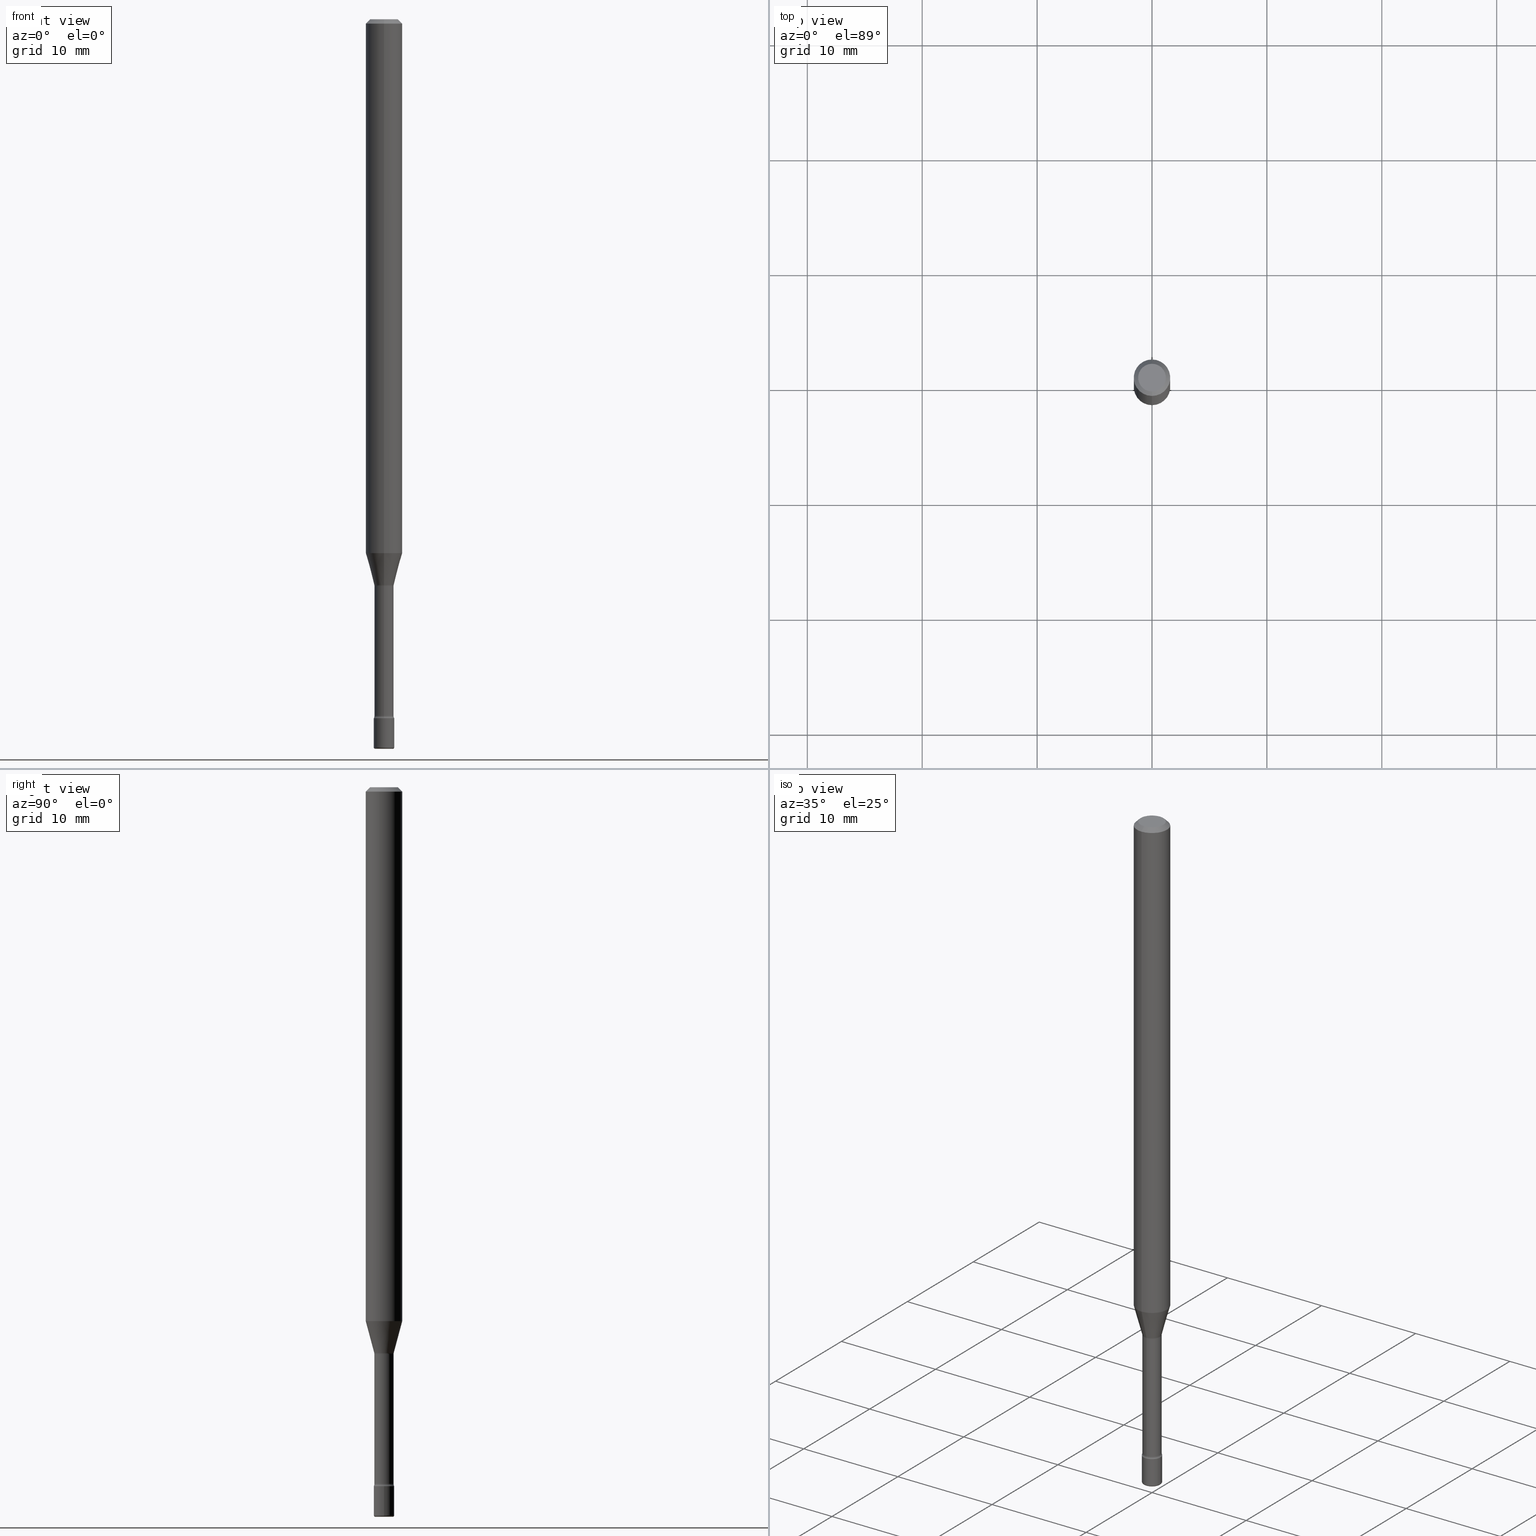
[diagram: canonical four-view strip — front | top / right | iso, engineering-drawing reading convention]
A machine part, canonical four-view strip (front | top / right | iso — engineering-drawing reading convention). The complete STEP part file that produces these views, byte-faithful:
ISO-10303-21;
HEADER;
FILE_DESCRIPTION (( 'STEP AP203' ),
    '1' );
FILE_NAME ('08933.STEP',
    '2024-03-06T20:11:26',
    ( '' ),
    ( '' ),
    'SwSTEP 2.0',
    'SolidWorks 2023',
    '' );
FILE_SCHEMA (( 'CONFIG_CONTROL_DESIGN' ));
ENDSEC;

DATA;
#1 = CARTESIAN_POINT ( 'NONE',  ( -1.169113584055446105E-44, 1.669184350826100908E-30, 4.780733988912460139E-16 ) ) ;
#2 = APPROVAL_STATUS ( 'not_yet_approved' ) ;
#3 = ORIENTED_EDGE ( 'NONE', *, *, #50, .T. ) ;
#4 = CYLINDRICAL_SURFACE ( 'NONE', #437, 0.06250000000000000000 ) ;
#5 = AXIS2_PLACEMENT_3D ( 'NONE', #490, #356, #539 ) ;
#6 = CC_DESIGN_APPROVAL ( #232, ( #136 ) ) ;
#7 = CARTESIAN_POINT ( 'NONE',  ( 6.101444671431915719E-29, -8.711245940413648329E-15, -2.495000000000000107 ) ) ;
#8 = DESIGN_CONTEXT ( 'detailed design', #400, 'design' ) ;
#9 = DIRECTION ( 'NONE',  ( -6.982962677686265922E-15, -1.000000000000000000, 0.000000000000000000 ) ) ;
#10 = DIRECTION ( 'NONE',  ( -2.445361929537154917E-29, 3.491634392286096321E-15, 1.000000000000000000 ) ) ;
#11 = VECTOR ( 'NONE', #10, 39.37007874015748143 ) ;
#12 = EDGE_CURVE ( 'NONE', #503, #272, #79, .T. ) ;
#13 = VERTEX_POINT ( 'NONE', #20 ) ;
#14 = LINE ( 'NONE', #146, #273 ) ;
#15 = APPROVAL ( #540, 'UNSPECIFIED' ) ;
#16 = VERTEX_POINT ( 'NONE', #233 ) ;
#17 = DIRECTION ( 'NONE',  ( 7.105427357600997914E-15, 1.000000000000000000, 0.000000000000000000 ) ) ;
#18 = VERTEX_POINT ( 'NONE', #407 ) ;
#19 = DIRECTION ( 'NONE',  ( -2.445361929537154917E-29, 3.491634392286096321E-15, 1.000000000000000000 ) ) ;
#20 = CARTESIAN_POINT ( 'NONE',  ( -3.773273898774339776E-16, -0.04749999999999998668, 1.387707164749902092E-16 ) ) ;
#21 = CIRCLE ( 'NONE', #556, 0.01500000000000002720 ) ;
#22 = DIRECTION ( 'NONE',  ( -6.982962677686265922E-15, -1.000000000000000000, 0.000000000000000000 ) ) ;
#23 = ORIENTED_EDGE ( 'NONE', *, *, #413, .T. ) ;
#24 = DIRECTION ( 'NONE',  ( -2.445361929537154917E-29, 3.491634392286096321E-15, 1.000000000000000000 ) ) ;
#25 = ORIENTED_EDGE ( 'NONE', *, *, #354, .F. ) ;
#26 = DIRECTION ( 'NONE',  ( -6.982962677686265922E-15, -1.000000000000000000, 4.370956789862821150E-15 ) ) ;
#27 = ADVANCED_FACE ( 'NONE', ( #551 ), #517, .F. ) ;
#28 = CIRCLE ( 'NONE', #446, 0.03341111260566397012 ) ;
#29 = VECTOR ( 'NONE', #284, 39.37007874015748143 ) ;
#30 = CARTESIAN_POINT ( 'NONE',  ( 0.03000000000000000583, -8.938192227438451682E-15, -2.499999999999999556 ) ) ;
#31 = CC_DESIGN_PERSON_AND_ORGANIZATION_ASSIGNMENT ( #128, #344, ( #136 ) ) ;
#32 = APPROVAL_ROLE ( '' ) ;
#33 = EDGE_CURVE ( 'NONE', #239, #235, #397, .T. ) ;
#34 = CALENDAR_DATE ( 2024, 6, 3 ) ;
#35 = CARTESIAN_POINT ( 'NONE',  ( 4.739337619792018117E-29, -6.767110434672245992E-15, -1.938092501787273214 ) ) ;
#36 = AXIS2_PLACEMENT_3D ( 'NONE', #459, #327, #68 ) ;
#37 = CYLINDRICAL_SURFACE ( 'NONE', #392, 0.03290000000000004726 ) ;
#38 = CIRCLE ( 'NONE', #116, 0.03500000000000000333 ) ;
#39 = ORIENTED_EDGE ( 'NONE', *, *, #33, .T. ) ;
#40 = DIRECTION ( 'NONE',  ( 2.445361929537154917E-29, -3.491634392286096321E-15, -1.000000000000000000 ) ) ;
#41 =( NAMED_UNIT ( * ) PLANE_ANGLE_UNIT ( ) SI_UNIT ( $, .RADIAN. ) );
#42 = EDGE_CURVE ( 'NONE', #542, #368, #374, .T. ) ;
#43 = DIRECTION ( 'NONE',  ( -6.982962677686265133E-15, -1.000000000000000000, 3.491634392286094348E-15 ) ) ;
#44 = LINE ( 'NONE', #432, #81 ) ;
#45 = CIRCLE ( 'NONE', #445, 0.03289999999999999869 ) ;
#46 = DATE_AND_TIME ( #266, #151 ) ;
#47 = DIRECTION ( 'NONE',  ( -1.000000000000000000, 6.982962677686265922E-15, -4.883557194083112340E-29 ) ) ;
#48 = DIRECTION ( 'NONE',  ( -6.982962677686265133E-15, -1.000000000000000000, 3.491634392286096715E-15 ) ) ;
#49 = EDGE_CURVE ( 'NONE', #322, #337, #436, .T. ) ;
#50 = EDGE_CURVE ( 'NONE', #568, #456, #264, .T. ) ;
#51 = DATE_AND_TIME ( #433, #72 ) ;
#52 = CARTESIAN_POINT ( 'NONE',  ( -0.03000000000000000583, -8.489048254638724265E-15, -2.499999999999999556 ) ) ;
#53 = CIRCLE ( 'NONE', #150, 0.04749999999999998668 ) ;
#54 = ORIENTED_EDGE ( 'NONE', *, *, #505, .T. ) ;
#55 = LOCAL_TIME ( 15, 11, 26.00000000000000000, #214 ) ;
#56 = DIRECTION ( 'NONE',  ( 1.000000000000000000, -7.105427357601001070E-15, 4.926317382906172649E-29 ) ) ;
#57 = ORIENTED_EDGE ( 'NONE', *, *, #377, .F. ) ;
#58 = CARTESIAN_POINT ( 'NONE',  ( 4.748831213385011578E-29, -6.780665956861124561E-15, -1.941974787463811136 ) ) ;
#59 = DIRECTION ( 'NONE',  ( -2.445468806185136597E-29, 3.491481338843145583E-15, 1.000000000000000000 ) ) ;
#60 = EDGE_CURVE ( 'NONE', #368, #568, #71, .T. ) ;
#61 = CARTESIAN_POINT ( 'NONE',  ( 3.407447217031635915E-16, 0.03341111260565720470, -1.938092501787273214 ) ) ;
#62 = ORIENTED_EDGE ( 'NONE', *, *, #352, .T. ) ;
#63 = ORIENTED_EDGE ( 'NONE', *, *, #197, .F. ) ;
#64 = AXIS2_PLACEMENT_3D ( 'NONE', #391, #220, #219 ) ;
#65 = CONICAL_SURFACE ( 'NONE', #286, 0.06250000000000000000, 0.7853981633974485010 ) ;
#66 = FACE_OUTER_BOUND ( 'NONE', #107, .T. ) ;
#67 = ORIENTED_EDGE ( 'NONE', *, *, #363, .F. ) ;
#68 = DIRECTION ( 'NONE',  ( -6.982962677686265922E-15, -1.000000000000000000, 0.000000000000000000 ) ) ;
#69 = ADVANCED_BREP_SHAPE_REPRESENTATION ( '08933', ( #203, #385, #548 ), #257 ) ;
#70 = DIRECTION ( 'NONE',  ( 2.445361929537154917E-29, -3.491634392286096321E-15, -1.000000000000000000 ) ) ;
#71 = CIRCLE ( 'NONE', #311, 0.004999999999999767651 ) ;
#72 = LOCAL_TIME ( 15, 11, 26.00000000000000000, #493 ) ;
#73 = DIRECTION ( 'NONE',  ( -2.445361929537154917E-29, 3.491634392286096321E-15, 1.000000000000000000 ) ) ;
#74 = EDGE_LOOP ( 'NONE', ( #563, #512, #62, #280 ) ) ;
#75 = DIRECTION ( 'NONE',  ( -6.982962677686265133E-15, -1.000000000000000000, 3.491634392286096321E-15 ) ) ;
#76 = EDGE_LOOP ( 'NONE', ( #279, #543 ) ) ;
#77 = PERSON_AND_ORGANIZATION ( #276, #401 ) ;
#78 = DIRECTION ( 'NONE',  ( -1.000000000000000000, 6.982962677686265922E-15, -4.876176775795935793E-29 ) ) ;
#79 = CIRCLE ( 'NONE', #101, 0.03290000000000008890 ) ;
#80 = DIRECTION ( 'NONE',  ( 1.000000000000000000, 0.000000000000000000, 0.000000000000000000 ) ) ;
#81 = VECTOR ( 'NONE', #350, 39.37007874015748143 ) ;
#82 = DIRECTION ( 'NONE',  ( 4.937700262164548831E-15, 0.7071067811865452413, -0.7071067811865497932 ) ) ;
#83 = AXIS2_PLACEMENT_3D ( 'NONE', #240, #416, #515 ) ;
#84 = APPLICATION_PROTOCOL_DEFINITION ( 'international standard', 'config_control_design', 1994, #474 ) ;
#85 = CARTESIAN_POINT ( 'NONE',  ( 4.440892098500625669E-16, 0.06250000000000000000, 2.598462493733650432E-16 ) ) ;
#86 = DIRECTION ( 'NONE',  ( -2.445361929537154917E-29, 3.491634392286096321E-15, 1.000000000000000000 ) ) ;
#87 = EDGE_CURVE ( 'NONE', #360, #306, #211, .T. ) ;
#88 = SECURITY_CLASSIFICATION_LEVEL ( 'unclassified' ) ;
#89 = CARTESIAN_POINT ( 'NONE',  ( -4.364351673553912750E-16, -0.06250000000000005551, -0.01499999999999981036 ) ) ;
#90 = AXIS2_PLACEMENT_3D ( 'NONE', #359, #278, #96 ) ;
#91 = EDGE_CURVE ( 'NONE', #13, #310, #44, .T. ) ;
#92 = AXIS2_PLACEMENT_3D ( 'NONE', #244, #530, #304 ) ;
#93 = ORIENTED_EDGE ( 'NONE', *, *, #413, .F. ) ;
#94 = APPROVAL_ROLE ( '' ) ;
#95 = ADVANCED_FACE ( 'NONE', ( #339 ), #388, .T. ) ;
#96 = DIRECTION ( 'NONE',  ( 1.000000000000000000, -6.982962677686239889E-15, 4.883557194083103933E-29 ) ) ;
#97 = DIRECTION ( 'NONE',  ( -6.982962677686265133E-15, -1.000000000000000000, 0.000000000000000000 ) ) ;
#98 = ADVANCED_FACE ( 'NONE', ( #523 ), #4, .T. ) ;
#99 = ORIENTED_EDGE ( 'NONE', *, *, #91, .F. ) ;
#100 = DIRECTION ( 'NONE',  ( -6.982962677686265922E-15, -1.000000000000000000, 4.370956789862821150E-15 ) ) ;
#101 = AXIS2_PLACEMENT_3D ( 'NONE', #451, #189, #449 ) ;
#102 = CIRCLE ( 'NONE', #519, 0.04749999999999998668 ) ;
#103 = APPROVAL_PERSON_ORGANIZATION ( #77, #232, #251 ) ;
#104 = EDGE_LOOP ( 'NONE', ( #63, #23, #54, #561 ) ) ;
#105 = EDGE_LOOP ( 'NONE', ( #370, #3, #335, #492 ) ) ;
#106 = CARTESIAN_POINT ( 'NONE',  ( 6.617399431615516844E-46, -9.463332413969183730E-32, -2.708191715859933263E-17 ) ) ;
#107 = EDGE_LOOP ( 'NONE', ( #57, #230, #167, #380 ) ) ;
#108 = ADVANCED_FACE ( 'NONE', ( #172 ), #37, .T. ) ;
#109 = VERTEX_POINT ( 'NONE', #478 ) ;
#110 = DIRECTION ( 'NONE',  ( 1.000000000000000000, -7.105427357601001070E-15, 4.926317382906172649E-29 ) ) ;
#111 = EDGE_LOOP ( 'NONE', ( #198, #522, #427, #293 ) ) ;
#112 = VERTEX_POINT ( 'NONE', #140 ) ;
#113 = FACE_OUTER_BOUND ( 'NONE', #111, .T. ) ;
#114 = ADVANCED_FACE ( 'NONE', ( #347 ), #382, .T. ) ;
#115 = ORIENTED_EDGE ( 'NONE', *, *, #435, .F. ) ;
#116 = AXIS2_PLACEMENT_3D ( 'NONE', #166, #238, #336 ) ;
#117 = CARTESIAN_POINT ( 'NONE',  ( 3.403499704291464501E-16, 0.04789999999999168534, -2.387345589506696619 ) ) ;
#118 = ORIENTED_EDGE ( 'NONE', *, *, #197, .T. ) ;
#119 = CC_DESIGN_DATE_AND_TIME_ASSIGNMENT ( #46, #312, ( #376 ) ) ;
#120 = DIRECTION ( 'NONE',  ( -2.445468806185136597E-29, 3.491481338843145583E-15, 1.000000000000000000 ) ) ;
#121 = VERTEX_POINT ( 'NONE', #168 ) ;
#122 = DIRECTION ( 'NONE',  ( -2.445361929537154917E-29, 3.491634392286096321E-15, 1.000000000000000000 ) ) ;
#123 = VECTOR ( 'NONE', #434, 39.37007874015748143 ) ;
#124 = DIRECTION ( 'NONE',  ( 1.839019923739599921E-15, 0.2588190451025249028, 0.9659258262890670910 ) ) ;
#125 = DATE_TIME_ROLE ( 'creation_date' ) ;
#126 = ORIENTED_EDGE ( 'NONE', *, *, #49, .F. ) ;
#127 = DIRECTION ( 'NONE',  ( -6.982962677686265922E-15, -1.000000000000000000, 3.491634392286095926E-15 ) ) ;
#128 = PERSON_AND_ORGANIZATION ( #276, #401 ) ;
#129 = PLANE ( 'NONE',  #242 ) ;
#130 = EDGE_CURVE ( 'NONE', #18, #121, #566, .T. ) ;
#131 = AXIS2_PLACEMENT_3D ( 'NONE', #500, #59, #194 ) ;
#132 = AXIS2_PLACEMENT_3D ( 'NONE', #35, #145, #9 ) ;
#133 = DIRECTION ( 'NONE',  ( 0.000000000000000000, 0.000000000000000000, 1.000000000000000000 ) ) ;
#134 = AXIS2_PLACEMENT_3D ( 'NONE', #274, #362, #222 ) ;
#135 = DIRECTION ( 'NONE',  ( 6.982962677686265922E-15, 1.000000000000000000, -3.483106191921935554E-15 ) ) ;
#136 = PRODUCT_DEFINITION_FORMATION_WITH_SPECIFIED_SOURCE ( 'ANY', '', #511, .NOT_KNOWN. ) ;
#137 = EDGE_CURVE ( 'NONE', #109, #112, #45, .T. ) ;
#138 = CARTESIAN_POINT ( 'NONE',  ( -0.03499999999999988537, -8.462555982897613832E-15, -2.495000000000000107 ) ) ;
#139 = ORIENTED_EDGE ( 'NONE', *, *, #60, .T. ) ;
#140 = CARTESIAN_POINT ( 'NONE',  ( 2.337685600651315248E-16, 0.03289999999999321245, -1.941974787463811136 ) ) ;
#141 = CARTESIAN_POINT ( 'NONE',  ( 2.486899575160932672E-16, 0.03499999999999160033, -2.395000000000000018 ) ) ;
#142 = PERSON_AND_ORGANIZATION ( #276, #401 ) ;
#143 = DIRECTION ( 'NONE',  ( -1.000000000000000000, 6.982962677686265922E-15, -4.883557194083112340E-29 ) ) ;
#144 = AXIS2_PLACEMENT_3D ( 'NONE', #404, #143, #394 ) ;
#145 = DIRECTION ( 'NONE',  ( -2.445361929537154917E-29, 3.491634392286096321E-15, 1.000000000000000000 ) ) ;
#146 = CARTESIAN_POINT ( 'NONE',  ( 0.03500000000000000333, -2.444036937190193250E-16, 1.706661871528577808E-30 ) ) ;
#147 = ORIENTED_EDGE ( 'NONE', *, *, #570, .T. ) ;
#148 = DIRECTION ( 'NONE',  ( -2.445468806185136597E-29, 3.491481338843145583E-15, 1.000000000000000000 ) ) ;
#149 = CLOSED_SHELL ( 'NONE', ( #439, #210, #114, #157, #250, #342 ) ) ;
#150 = AXIS2_PLACEMENT_3D ( 'NONE', #270, #351, #48 ) ;
#151 = LOCAL_TIME ( 15, 11, 26.00000000000000000, #536 ) ;
#152 = DIRECTION ( 'NONE',  ( -2.445468806185136597E-29, 3.491481338843145583E-15, 1.000000000000000000 ) ) ;
#153 = DIRECTION ( 'NONE',  ( -2.445468806185136597E-29, 3.491481338843145583E-15, 1.000000000000000000 ) ) ;
#154 = CC_DESIGN_PERSON_AND_ORGANIZATION_ASSIGNMENT ( #562, #247, ( #453 ) ) ;
#155 = CARTESIAN_POINT ( 'NONE',  ( 5.856641821241486538E-29, -8.362464369525200210E-15, -2.395000000000000018 ) ) ;
#156 = CARTESIAN_POINT ( 'NONE',  ( 0.000000000000000000, 0.000000000000000000, 0.000000000000000000 ) ) ;
#157 = ADVANCED_FACE ( 'NONE', ( #178 ), #129, .T. ) ;
#158 = CYLINDRICAL_SURFACE ( 'NONE', #256, 0.03500000000000000333 ) ;
#159 = ADVANCED_FACE ( 'NONE', ( #520 ), #375, .T. ) ;
#160 = EDGE_LOOP ( 'NONE', ( #516, #405, #420, #195 ) ) ;
#161 = AXIS2_PLACEMENT_3D ( 'NONE', #191, #152, #326 ) ;
#162 = CIRCLE ( 'NONE', #348, 0.01499999999999992485 ) ;
#163 = AXIS2_PLACEMENT_3D ( 'NONE', #560, #282, #22 ) ;
#164 = CARTESIAN_POINT ( 'NONE',  ( 4.473866180369832235E-29, -6.388054395212417498E-15, -1.829531296095961546 ) ) ;
#165 = ORIENTED_EDGE ( 'NONE', *, *, #414, .T. ) ;
#166 = CARTESIAN_POINT ( 'NONE',  ( 6.101444671431915719E-29, -8.711245940413648329E-15, -2.495000000000000107 ) ) ;
#167 = ORIENTED_EDGE ( 'NONE', *, *, #315, .T. ) ;
#168 = CARTESIAN_POINT ( 'NONE',  ( 4.440892098501075812E-16, 0.06249999999999995143, -0.01500000000000024578 ) ) ;
#169 = DATE_AND_TIME ( #34, #206 ) ;
#170 = DIRECTION ( 'NONE',  ( 7.105427357601001859E-15, 1.000000000000000000, -3.491481338843145583E-15 ) ) ;
#171 = DIRECTION ( 'NONE',  ( -6.982962677686266711E-15, -1.000000000000000000, 3.491481338843145583E-15 ) ) ;
#172 = FACE_OUTER_BOUND ( 'NONE', #411, .T. ) ;
#173 = ADVANCED_FACE ( 'NONE', ( #425 ), #472, .T. ) ;
#174 = DIRECTION ( 'NONE',  ( 1.000000000000000000, -6.982962677686248567E-15, 0.000000000000000000 ) ) ;
#175 = AXIS2_PLACEMENT_3D ( 'NONE', #309, #541, #316 ) ;
#176 = COORDINATED_UNIVERSAL_TIME_OFFSET ( 5, 0, .BEHIND. ) ;
#177 = AXIS2_PLACEMENT_3D ( 'NONE', #288, #19, #553 ) ;
#178 = FACE_OUTER_BOUND ( 'NONE', #76, .T. ) ;
#179 = DIRECTION ( 'NONE',  ( -6.982962677686266711E-15, -1.000000000000000000, 0.000000000000000000 ) ) ;
#180 = ORIENTED_EDGE ( 'NONE', *, *, #414, .F. ) ;
#181 = DIRECTION ( 'NONE',  ( -2.445361929537154636E-29, 3.491634392286096321E-15, 1.000000000000000000 ) ) ;
#182 = PERSON_AND_ORGANIZATION ( #276, #401 ) ;
#183 = CARTESIAN_POINT ( 'NONE',  ( -2.444036937189605549E-16, -0.03500000000000832306, -2.395000000000000018 ) ) ;
#184 = TOROIDAL_SURFACE ( 'NONE', #90, 0.03000000000000000583, 0.004999999999999767651 ) ;
#185 = AXIS2_PLACEMENT_3D ( 'NONE', #557, #171, #338 ) ;
#186 = EDGE_LOOP ( 'NONE', ( #99, #277, #275, #147 ) ) ;
#187 = CARTESIAN_POINT ( 'NONE',  ( -3.344839122611139354E-16, -0.04790000000000835256, -2.387345589506696175 ) ) ;
#188 = EDGE_CURVE ( 'NONE', #547, #16, #305, .T. ) ;
#189 = DIRECTION ( 'NONE',  ( -2.445361929537154917E-29, 3.491634392286096321E-15, 1.000000000000000000 ) ) ;
#190 = CARTESIAN_POINT ( 'NONE',  ( 4.739337619792018117E-29, -6.767110434672245992E-15, -1.938092501787273214 ) ) ;
#191 = CARTESIAN_POINT ( 'NONE',  ( 5.856897790813402508E-29, -8.362097806529333416E-15, -2.395000000000000018 ) ) ;
#192 = FACE_OUTER_BOUND ( 'NONE', #487, .T. ) ;
#193 = CIRCLE ( 'NONE', #175, 0.06250000000000000000 ) ;
#194 = DIRECTION ( 'NONE',  ( 1.000000000000000000, -6.982962677686299054E-15, 0.000000000000000000 ) ) ;
#195 = ORIENTED_EDGE ( 'NONE', *, *, #297, .F. ) ;
#196 = CARTESIAN_POINT ( 'NONE',  ( 4.749038765140760416E-29, -6.780368730933779783E-15, -1.941974787463811136 ) ) ;
#197 = EDGE_CURVE ( 'NONE', #16, #121, #482, .T. ) ;
#198 = ORIENTED_EDGE ( 'NONE', *, *, #484, .F. ) ;
#199 = ORIENTED_EDGE ( 'NONE', *, *, #271, .F. ) ;
#200 = CARTESIAN_POINT ( 'NONE',  ( 2.337685600650732477E-16, 0.03290000000000004726, 3.631986273850333500E-16 ) ) ;
#201 = ORIENTED_EDGE ( 'NONE', *, *, #315, .F. ) ;
#202 = DIRECTION ( 'NONE',  ( 6.982962677686265922E-15, 1.000000000000000000, -3.483106191921935554E-15 ) ) ;
#203 = MANIFOLD_SOLID_BREP ( 'Body-Move/Copy2[1]', #149 ) ;
#204 = ORIENTED_EDGE ( 'NONE', *, *, #50, .F. ) ;
#205 = CC_DESIGN_APPROVAL ( #15, ( #376 ) ) ;
#206 = LOCAL_TIME ( 15, 11, 26.00000000000000000, #422 ) ;
#207 = DIRECTION ( 'NONE',  ( 1.000000000000000000, -6.982962677686276966E-15, 0.000000000000000000 ) ) ;
#208 = ORIENTED_EDGE ( 'NONE', *, *, #377, .T. ) ;
#209 = ORIENTED_EDGE ( 'NONE', *, *, #455, .T. ) ;
#210 = ADVANCED_FACE ( 'NONE', ( #393 ), #184, .T. ) ;
#211 = LINE ( 'NONE', #343, #408 ) ;
#212 = CIRCLE ( 'NONE', #458, 0.03289999999999999869 ) ;
#213 = VECTOR ( 'NONE', #73, 39.37007874015748143 ) ;
#214 = COORDINATED_UNIVERSAL_TIME_OFFSET ( 5, 0, .BEHIND. ) ;
#215 = DIRECTION ( 'NONE',  ( -2.445361929537154917E-29, 3.491634392286096321E-15, 1.000000000000000000 ) ) ;
#216 =( CONVERSION_BASED_UNIT ( 'INCH', #379 ) LENGTH_UNIT ( ) NAMED_UNIT ( #281 ) );
#217 = CC_DESIGN_PERSON_AND_ORGANIZATION_ASSIGNMENT ( #182, #319, ( #376 ) ) ;
#218 = CARTESIAN_POINT ( 'NONE',  ( -1.169113584055446105E-44, 1.669184350826100908E-30, 4.780733988912460139E-16 ) ) ;
#219 = DIRECTION ( 'NONE',  ( 1.000000000000000000, -6.982962677686265922E-15, 4.876176775795935793E-29 ) ) ;
#220 = DIRECTION ( 'NONE',  ( -2.438088387897960049E-29, 3.491481338843145188E-15, 1.000000000000000000 ) ) ;
#221 = UNCERTAINTY_MEASURE_WITH_UNIT (LENGTH_MEASURE( 1.000000000000000082E-05 ), #216, 'distance_accuracy_value', 'NONE');
#222 = DIRECTION ( 'NONE',  ( -6.982962677686266711E-15, -1.000000000000000000, 0.000000000000000000 ) ) ;
#223 = FACE_OUTER_BOUND ( 'NONE', #228, .T. ) ;
#224 = ORIENTED_EDGE ( 'NONE', *, *, #352, .F. ) ;
#225 = CARTESIAN_POINT ( 'NONE',  ( -0.03500000000000000333, -8.287981915955455587E-15, -2.395000000000000018 ) ) ;
#226 = VECTOR ( 'NONE', #124, 39.37007874015748143 ) ;
#227 = LOCAL_TIME ( 15, 11, 26.00000000000000000, #176 ) ;
#228 = EDGE_LOOP ( 'NONE', ( #423, #209, #444, #204 ) ) ;
#229 = EDGE_CURVE ( 'NONE', #360, #547, #302, .T. ) ;
#230 = ORIENTED_EDGE ( 'NONE', *, *, #229, .F. ) ;
#231 = CARTESIAN_POINT ( 'NONE',  ( 0.03500000000000000333, -8.606501500248353382E-15, -2.395000000000000018 ) ) ;
#232 = APPROVAL ( #524, 'UNSPECIFIED' ) ;
#233 = CARTESIAN_POINT ( 'NONE',  ( 4.440892098501069896E-16, 0.06249999999999358152, -1.829531296095961990 ) ) ;
#234 = DIRECTION ( 'NONE',  ( -2.445361929537154917E-29, 3.491634392286096321E-15, 1.000000000000000000 ) ) ;
#235 = VERTEX_POINT ( 'NONE', #231 ) ;
#236 = DIRECTION ( 'NONE',  ( 1.000000000000000000, -6.982962677686265922E-15, 4.876176775795936353E-29 ) ) ;
#237 = ORIENTED_EDGE ( 'NONE', *, *, #297, .T. ) ;
#238 = DIRECTION ( 'NONE',  ( -2.445468806185136597E-29, 3.491481338843145583E-15, 1.000000000000000000 ) ) ;
#239 = VERTEX_POINT ( 'NONE', #225 ) ;
#240 = CARTESIAN_POINT ( 'NONE',  ( 5.856641821241486538E-29, -8.362464369525200210E-15, -2.395000000000000018 ) ) ;
#241 = PRODUCT_DEFINITION_SHAPE ( 'NONE', 'NONE',  #453 ) ;
#242 = AXIS2_PLACEMENT_3D ( 'NONE', #424, #531, #78 ) ;
#243 = ORIENTED_EDGE ( 'NONE', *, *, #505, .F. ) ;
#244 = CARTESIAN_POINT ( 'NONE',  ( 3.668042894305739311E-31, -5.237451588429154292E-17, -0.01500000000000002720 ) ) ;
#245 = ORIENTED_EDGE ( 'NONE', *, *, #396, .T. ) ;
#246 = CC_DESIGN_PERSON_AND_ORGANIZATION_ASSIGNMENT ( #261, #521, ( #511 ) ) ;
#247 = PERSON_AND_ORGANIZATION_ROLE ( 'creator' ) ;
#248 = ORIENTED_EDGE ( 'NONE', *, *, #461, .F. ) ;
#249 = CARTESIAN_POINT ( 'NONE',  ( 6.101444671431915719E-29, -8.711245940413648329E-15, -2.495000000000000107 ) ) ;
#250 = ADVANCED_FACE ( 'NONE', ( #223 ), #419, .T. ) ;
#251 = APPROVAL_ROLE ( '' ) ;
#252 = EDGE_LOOP ( 'NONE', ( #466, #421, #67, #496 ) ) ;
#253 = DIRECTION ( 'NONE',  ( -2.445361929537154917E-29, 3.491634392286096321E-15, 1.000000000000000000 ) ) ;
#254 = ADVANCED_FACE ( 'NONE', ( #324 ), #450, .F. ) ;
#255 = EDGE_CURVE ( 'NONE', #503, #337, #162, .T. ) ;
#256 = AXIS2_PLACEMENT_3D ( 'NONE', #156, #329, #236 ) ;
#257 =( GEOMETRIC_REPRESENTATION_CONTEXT ( 3 ) GLOBAL_UNCERTAINTY_ASSIGNED_CONTEXT ( ( #221 ) ) GLOBAL_UNIT_ASSIGNED_CONTEXT ( ( #216, #41, #564 ) ) REPRESENTATION_CONTEXT ( 'NONE', 'WORKASPACE' ) );
#258 = CALENDAR_DATE ( 2024, 6, 3 ) ;
#259 = CARTESIAN_POINT ( 'NONE',  ( 3.668042894305739311E-31, -5.237451588429154292E-17, -0.01500000000000002720 ) ) ;
#260 = CC_DESIGN_DATE_AND_TIME_ASSIGNMENT ( #169, #125, ( #453 ) ) ;
#261 = PERSON_AND_ORGANIZATION ( #276, #401 ) ;
#262 = DIRECTION ( 'NONE',  ( -1.000000000000000000, 7.105427357601061812E-15, 0.000000000000000000 ) ) ;
#263 = CARTESIAN_POINT ( 'NONE',  ( 2.374002335562198482E-16, 0.03341111260565720470, -1.938092501787273214 ) ) ;
#264 = CIRCLE ( 'NONE', #457, 0.03500000000000000333 ) ;
#265 = CIRCLE ( 'NONE', #398, 0.03500000000000000333 ) ;
#266 = CALENDAR_DATE ( 2024, 6, 3 ) ;
#267 = FACE_OUTER_BOUND ( 'NONE', #105, .T. ) ;
#268 = SHAPE_DEFINITION_REPRESENTATION ( #241, #69 ) ;
#269 = CARTESIAN_POINT ( 'NONE',  ( 2.444036937190778979E-16, 0.03499999999999164196, -2.395000000000000018 ) ) ;
#270 = CARTESIAN_POINT ( 'NONE',  ( 6.617399431615516844E-46, -9.463332413969183730E-32, -2.708191715859933263E-17 ) ) ;
#271 = EDGE_CURVE ( 'NONE', #272, #503, #341, .T. ) ;
#272 = VERTEX_POINT ( 'NONE', #441 ) ;
#273 = VECTOR ( 'NONE', #320, 39.37007874015748143 ) ;
#274 = CARTESIAN_POINT ( 'NONE',  ( 5.837924017228111976E-29, -8.335737966594106856E-15, -2.387345589506696619 ) ) ;
#275 = ORIENTED_EDGE ( 'NONE', *, *, #130, .T. ) ;
#276 = PERSON ( 'UNSPECIFIED', 'UNSPECIFIED', 'UNSPECIFIED', ('UNSPECIFIED'), ('UNSPECIFIED'), ('UNSPECIFIED') ) ;
#277 = ORIENTED_EDGE ( 'NONE', *, *, #289, .F. ) ;
#278 = DIRECTION ( 'NONE',  ( -2.445468806185136597E-29, 3.491481338843145583E-15, 1.000000000000000000 ) ) ;
#279 = ORIENTED_EDGE ( 'NONE', *, *, #42, .F. ) ;
#280 = ORIENTED_EDGE ( 'NONE', *, *, #130, .F. ) ;
#281 = DIMENSIONAL_EXPONENTS ( 1.000000000000000000, 0.000000000000000000, 0.000000000000000000, 0.000000000000000000, 0.000000000000000000, 0.000000000000000000, 0.000000000000000000 ) ;
#282 = DIRECTION ( 'NONE',  ( -2.445361929537154917E-29, 3.491634392286096321E-15, 1.000000000000000000 ) ) ;
#283 = EDGE_LOOP ( 'NONE', ( #361, #118, #224, #243 ) ) ;
#284 = DIRECTION ( 'NONE',  ( -2.445468806185136877E-29, 3.491481338843145188E-15, 1.000000000000000000 ) ) ;
#285 = VECTOR ( 'NONE', #366, 39.37007874015748143 ) ;
#286 = AXIS2_PLACEMENT_3D ( 'NONE', #334, #70, #202 ) ;
#287 = ORIENTED_EDGE ( 'NONE', *, *, #188, .F. ) ;
#288 = CARTESIAN_POINT ( 'NONE',  ( 4.749038765140760416E-29, -6.780368730933779783E-15, -1.941974787463811136 ) ) ;
#289 = EDGE_CURVE ( 'NONE', #18, #13, #53, .T. ) ;
#290 = DIRECTION ( 'NONE',  ( 7.105427357601001859E-15, 1.000000000000000000, 0.000000000000000000 ) ) ;
#291 = LINE ( 'NONE', #418, #213 ) ;
#292 = EDGE_LOOP ( 'NONE', ( #287, #452, #389, #93 ) ) ;
#293 = ORIENTED_EDGE ( 'NONE', *, *, #462, .T. ) ;
#294 = AXIS2_PLACEMENT_3D ( 'NONE', #259, #40, #135 ) ;
#295 = MECHANICAL_CONTEXT ( 'NONE', #474, 'mechanical' ) ;
#296 = CARTESIAN_POINT ( 'NONE',  ( 4.748831213385011578E-29, -6.780665956861124561E-15, -1.941974787463811136 ) ) ;
#297 = EDGE_CURVE ( 'NONE', #503, #109, #535, .T. ) ;
#298 = CARTESIAN_POINT ( 'NONE',  ( 0.000000000000000000, 0.000000000000000000, 0.000000000000000000 ) ) ;
#299 = CARTESIAN_POINT ( 'NONE',  ( -1.169113584055446105E-44, 1.669184350826100908E-30, 4.780733988912460139E-16 ) ) ;
#300 = FACE_OUTER_BOUND ( 'NONE', #463, .T. ) ;
#301 = CARTESIAN_POINT ( 'NONE',  ( -0.03000000000000000583, -8.498083119685618084E-15, -2.495000000000000107 ) ) ;
#302 = CIRCLE ( 'NONE', #132, 0.03341111260566397012 ) ;
#303 = CC_DESIGN_APPROVAL ( #572, ( #453 ) ) ;
#304 = DIRECTION ( 'NONE',  ( -6.982962677686265922E-15, -1.000000000000000000, 3.483106191921935554E-15 ) ) ;
#305 = LINE ( 'NONE', #263, #226 ) ;
#306 = VERTEX_POINT ( 'NONE', #353 ) ;
#307 = CALENDAR_DATE ( 2024, 6, 3 ) ;
#308 = DIRECTION ( 'NONE',  ( -6.982962677686265133E-15, -1.000000000000000000, 0.000000000000000000 ) ) ;
#309 = CARTESIAN_POINT ( 'NONE',  ( 3.668042894305739311E-31, -5.237451588429154292E-17, -0.01500000000000002720 ) ) ;
#310 = VERTEX_POINT ( 'NONE', #89 ) ;
#311 = AXIS2_PLACEMENT_3D ( 'NONE', #301, #170, #262 ) ;
#312 = DATE_TIME_ROLE ( 'classification_date' ) ;
#313 = AXIS2_PLACEMENT_3D ( 'NONE', #331, #153, #513 ) ;
#314 = CYLINDRICAL_SURFACE ( 'NONE', #5, 0.03500000000000000333 ) ;
#315 = EDGE_CURVE ( 'NONE', #360, #109, #426, .T. ) ;
#316 = DIRECTION ( 'NONE',  ( -6.982962677686265922E-15, -1.000000000000000000, 3.483106191921935554E-15 ) ) ;
#317 = ORIENTED_EDGE ( 'NONE', *, *, #461, .T. ) ;
#318 = EDGE_LOOP ( 'NONE', ( #317, #514, #180, #403 ) ) ;
#319 = PERSON_AND_ORGANIZATION_ROLE ( 'classification_officer' ) ;
#320 = DIRECTION ( 'NONE',  ( -2.445468806185136877E-29, 3.491481338843145188E-15, 1.000000000000000000 ) ) ;
#321 = ORIENTED_EDGE ( 'NONE', *, *, #289, .T. ) ;
#322 = VERTEX_POINT ( 'NONE', #141 ) ;
#323 = CIRCLE ( 'NONE', #332, 0.06250000000000000000 ) ;
#324 = FACE_OUTER_BOUND ( 'NONE', #415, .T. ) ;
#325 = TOROIDAL_SURFACE ( 'NONE', #177, 0.04789999999999999813, 0.01500000000000002547 ) ;
#326 = DIRECTION ( 'NONE',  ( 1.000000000000000000, -6.982962677686276966E-15, 0.000000000000000000 ) ) ;
#327 = DIRECTION ( 'NONE',  ( -2.445361929537154917E-29, 3.491634392286096321E-15, 1.000000000000000000 ) ) ;
#328 = DIRECTION ( 'NONE',  ( -2.445361929537154917E-29, 3.491634392286096321E-15, 1.000000000000000000 ) ) ;
#329 = DIRECTION ( 'NONE',  ( -2.445468806185136597E-29, 3.491481338843145583E-15, 1.000000000000000000 ) ) ;
#330 = DIRECTION ( 'NONE',  ( -2.445361929537154917E-29, 3.491634392286096321E-15, 1.000000000000000000 ) ) ;
#331 = CARTESIAN_POINT ( 'NONE',  ( 6.113672015462840371E-29, -8.728703347107863365E-15, -2.499999999999999556 ) ) ;
#332 = AXIS2_PLACEMENT_3D ( 'NONE', #164, #378, #26 ) ;
#333 = APPROVAL_PERSON_ORGANIZATION ( #431, #572, #32 ) ;
#334 = CARTESIAN_POINT ( 'NONE',  ( 3.668042894305739311E-31, -5.237451588429154292E-17, -0.01500000000000002720 ) ) ;
#335 = ORIENTED_EDGE ( 'NONE', *, *, #372, .T. ) ;
#336 = DIRECTION ( 'NONE',  ( 1.000000000000000000, -6.982962677686248567E-15, 0.000000000000000000 ) ) ;
#337 = VERTEX_POINT ( 'NONE', #183 ) ;
#338 = DIRECTION ( 'NONE',  ( 1.000000000000000000, -6.982962677686075017E-15, 0.000000000000000000 ) ) ;
#339 = FACE_OUTER_BOUND ( 'NONE', #104, .T. ) ;
#340 = CLOSED_SHELL ( 'NONE', ( #550, #173, #27, #468, #98, #430, #476, #95, #159, #567, #254, #479, #108, #532 ) ) ;
#341 = CIRCLE ( 'NONE', #134, 0.03290000000000008890 ) ;
#342 = ADVANCED_FACE ( 'NONE', ( #267 ), #314, .T. ) ;
#343 = CARTESIAN_POINT ( 'NONE',  ( -2.333085523452772130E-16, -0.03341111260567073554, -1.938092501787273214 ) ) ;
#344 = PERSON_AND_ORGANIZATION_ROLE ( 'creator' ) ;
#345 = DIRECTION ( 'NONE',  ( -6.982962677686265922E-15, -1.000000000000000000, 3.491634392286095926E-15 ) ) ;
#346 = CARTESIAN_POINT ( 'NONE',  ( 3.316907271900975110E-16, 0.04749999999999998668, 5.964310723273385275E-17 ) ) ;
#347 = FACE_OUTER_BOUND ( 'NONE', #358, .T. ) ;
#348 = AXIS2_PLACEMENT_3D ( 'NONE', #187, #47, #179 ) ;
#349 = DATE_AND_TIME ( #307, #227 ) ;
#350 = DIRECTION ( 'NONE',  ( -4.851104656540965064E-15, -0.7071067811865501263, -0.7071067811865449082 ) ) ;
#351 = DIRECTION ( 'NONE',  ( -2.445361929537154917E-29, 3.491634392286096321E-15, 1.000000000000000000 ) ) ;
#352 = EDGE_CURVE ( 'NONE', #310, #121, #193, .T. ) ;
#353 = CARTESIAN_POINT ( 'NONE',  ( -4.364351673553470495E-16, -0.06250000000000641154, -1.829531296095961324 ) ) ;
#354 = EDGE_CURVE ( 'NONE', #112, #109, #212, .T. ) ;
#355 = AXIS2_PLACEMENT_3D ( 'NONE', #454, #122, #508 ) ;
#356 = DIRECTION ( 'NONE',  ( -2.445468806185136597E-29, 3.491481338843145583E-15, 1.000000000000000000 ) ) ;
#357 = EDGE_LOOP ( 'NONE', ( #509, #139, #248, #469 ) ) ;
#358 = EDGE_LOOP ( 'NONE', ( #165, #39 ) ) ;
#359 = CARTESIAN_POINT ( 'NONE',  ( 6.101444671431915719E-29, -8.711245940413648329E-15, -2.495000000000000107 ) ) ;
#360 = VERTEX_POINT ( 'NONE', #494 ) ;
#361 = ORIENTED_EDGE ( 'NONE', *, *, #363, .T. ) ;
#362 = DIRECTION ( 'NONE',  ( -2.445361929537154917E-29, 3.491634392286096321E-15, 1.000000000000000000 ) ) ;
#363 = EDGE_CURVE ( 'NONE', #306, #16, #470, .T. ) ;
#364 = CARTESIAN_POINT ( 'NONE',  ( 5.838179168722291637E-29, -8.335372575132119928E-15, -2.387345589506696619 ) ) ;
#365 = AXIS2_PLACEMENT_3D ( 'NONE', #218, #86, #571 ) ;
#366 = DIRECTION ( 'NONE',  ( -2.445361929537154917E-29, 3.491634392286096321E-15, 1.000000000000000000 ) ) ;
#367 = ORIENTED_EDGE ( 'NONE', *, *, #484, .T. ) ;
#368 = VERTEX_POINT ( 'NONE', #52 ) ;
#369 = CARTESIAN_POINT ( 'NONE',  ( -2.297394720958204179E-16, -0.03290000000000842945, -2.387345589506696619 ) ) ;
#370 = ORIENTED_EDGE ( 'NONE', *, *, #495, .F. ) ;
#371 = CARTESIAN_POINT ( 'NONE',  ( 5.856897790813402508E-29, -8.362097806529333416E-15, -2.395000000000000018 ) ) ;
#372 = EDGE_CURVE ( 'NONE', #456, #235, #14, .T. ) ;
#373 = CARTESIAN_POINT ( 'NONE',  ( -0.03500000000000000333, 2.486899575160350887E-16, -1.721627281589217108E-30 ) ) ;
#374 = CIRCLE ( 'NONE', #131, 0.03000000000000000583 ) ;
#375 = CONICAL_SURFACE ( 'NONE', #294, 0.06250000000000000000, 0.7853981633974485010 ) ;
#376 = SECURITY_CLASSIFICATION ( '', '', #88 ) ;
#377 = EDGE_CURVE ( 'NONE', #547, #112, #21, .T. ) ;
#378 = DIRECTION ( 'NONE',  ( -2.445361929537154917E-29, 3.491634392286096321E-15, 1.000000000000000000 ) ) ;
#379 = LENGTH_MEASURE_WITH_UNIT ( LENGTH_MEASURE( 0.02539999999999999897 ), #428 );
#380 = ORIENTED_EDGE ( 'NONE', *, *, #137, .T. ) ;
#381 = DIRECTION ( 'NONE',  ( 2.445361929537154636E-29, -3.491634392286096321E-15, -1.000000000000000000 ) ) ;
#382 = PLANE ( 'NONE',  #64 ) ;
#383 = VECTOR ( 'NONE', #82, 39.37007874015748143 ) ;
#384 = AXIS2_PLACEMENT_3D ( 'NONE', #117, #110, #290 ) ;
#385 = MANIFOLD_SOLID_BREP ( 'Body-Move/Copy2[2]', #340 ) ;
#386 = DATE_AND_TIME ( #258, #55 ) ;
#387 = DIRECTION ( 'NONE',  ( -1.807323732225329745E-15, -0.2588190451025181305, 0.9659258262890689783 ) ) ;
#388 = CYLINDRICAL_SURFACE ( 'NONE', #488, 0.06250000000000000000 ) ;
#389 = ORIENTED_EDGE ( 'NONE', *, *, #87, .T. ) ;
#390 = APPLICATION_PROTOCOL_DEFINITION ( 'international standard', 'config_control_design', 1994, #400 ) ;
#391 = CARTESIAN_POINT ( 'NONE',  ( 5.856897790813402508E-29, -8.362097806529333416E-15, -2.395000000000000018 ) ) ;
#392 = AXIS2_PLACEMENT_3D ( 'NONE', #475, #215, #43 ) ;
#393 = FACE_OUTER_BOUND ( 'NONE', #357, .T. ) ;
#394 = DIRECTION ( 'NONE',  ( -6.982962677686267499E-15, -1.000000000000000000, 0.000000000000000000 ) ) ;
#395 = EDGE_CURVE ( 'NONE', #547, #360, #28, .T. ) ;
#396 = EDGE_CURVE ( 'NONE', #13, #18, #102, .T. ) ;
#397 = CIRCLE ( 'NONE', #161, 0.03500000000000000333 ) ;
#398 = AXIS2_PLACEMENT_3D ( 'NONE', #371, #120, #207 ) ;
#399 = APPROVAL_DATE_TIME ( #51, #15 ) ;
#400 = APPLICATION_CONTEXT ( 'configuration controlled 3d designs of mechanical parts and assemblies' ) ;
#401 = ORGANIZATION ( 'UNSPECIFIED', 'UNSPECIFIED', '' ) ;
#402 = DIRECTION ( 'NONE',  ( 1.000000000000000000, -6.982962677686239889E-15, 4.883557194083103933E-29 ) ) ;
#403 = ORIENTED_EDGE ( 'NONE', *, *, #372, .F. ) ;
#404 = CARTESIAN_POINT ( 'NONE',  ( -3.344839122611246343E-16, -0.04790000000000677050, -1.941974787463810914 ) ) ;
#405 = ORIENTED_EDGE ( 'NONE', *, *, #435, .T. ) ;
#406 = ORIENTED_EDGE ( 'NONE', *, *, #354, .T. ) ;
#407 = CARTESIAN_POINT ( 'NONE',  ( 3.840629472727447874E-16, 0.04749999999999998668, -1.929345507921888683E-16 ) ) ;
#408 = VECTOR ( 'NONE', #387, 39.37007874015748143 ) ;
#409 = FACE_OUTER_BOUND ( 'NONE', #252, .T. ) ;
#410 = CIRCLE ( 'NONE', #92, 0.06250000000000000000 ) ;
#411 = EDGE_LOOP ( 'NONE', ( #115, #554, #237, #25 ) ) ;
#412 = EDGE_LOOP ( 'NONE', ( #199, #367, #473, #558 ) ) ;
#413 = EDGE_CURVE ( 'NONE', #16, #306, #323, .T. ) ;
#414 = EDGE_CURVE ( 'NONE', #235, #239, #265, .T. ) ;
#415 = EDGE_LOOP ( 'NONE', ( #506, #126 ) ) ;
#416 = DIRECTION ( 'NONE',  ( -2.445361929537154917E-29, 3.491634392286096321E-15, 1.000000000000000000 ) ) ;
#417 = AXIS2_PLACEMENT_3D ( 'NONE', #155, #328, #502 ) ;
#418 = CARTESIAN_POINT ( 'NONE',  ( -4.364351673553916201E-16, -0.06250000000000000000, 6.963005484091270833E-16 ) ) ;
#419 = TOROIDAL_SURFACE ( 'NONE', #527, 0.03000000000000000583, 0.004999999999999767651 ) ;
#420 = ORIENTED_EDGE ( 'NONE', *, *, #137, .F. ) ;
#421 = ORIENTED_EDGE ( 'NONE', *, *, #188, .T. ) ;
#422 = COORDINATED_UNIVERSAL_TIME_OFFSET ( 5, 0, .BEHIND. ) ;
#423 = ORIENTED_EDGE ( 'NONE', *, *, #60, .F. ) ;
#424 = CARTESIAN_POINT ( 'NONE',  ( 2.094888803306491578E-16, 0.02999999999999127670, -2.500000000000000000 ) ) ;
#425 = FACE_OUTER_BOUND ( 'NONE', #160, .T. ) ;
#426 = CIRCLE ( 'NONE', #144, 0.01500000000000002720 ) ;
#427 = ORIENTED_EDGE ( 'NONE', *, *, #255, .T. ) ;
#428 =( LENGTH_UNIT ( ) NAMED_UNIT ( * ) SI_UNIT ( $, .METRE. ) );
#429 = DIRECTION ( 'NONE',  ( -2.445361929537154917E-29, 3.491634392286096321E-15, 1.000000000000000000 ) ) ;
#430 = ADVANCED_FACE ( 'NONE', ( #409 ), #480, .T. ) ;
#431 = PERSON_AND_ORGANIZATION ( #276, #401 ) ;
#432 = CARTESIAN_POINT ( 'NONE',  ( -4.287811248607203282E-16, -0.06250000000000005551, -0.01499999999999981036 ) ) ;
#433 = CALENDAR_DATE ( 2024, 6, 3 ) ;
#434 = DIRECTION ( 'NONE',  ( -2.445361929537154917E-29, 3.491634392286096321E-15, 1.000000000000000000 ) ) ;
#435 = EDGE_CURVE ( 'NONE', #272, #112, #465, .T. ) ;
#436 = CIRCLE ( 'NONE', #417, 0.03500000000000000333 ) ;
#437 = AXIS2_PLACEMENT_3D ( 'NONE', #299, #253, #345 ) ;
#438 = AXIS2_PLACEMENT_3D ( 'NONE', #196, #24, #75 ) ;
#439 = ADVANCED_FACE ( 'NONE', ( #555 ), #158, .T. ) ;
#440 = DIRECTION ( 'NONE',  ( -6.982962677686265922E-15, -1.000000000000000000, 3.491634392286096321E-15 ) ) ;
#441 = CARTESIAN_POINT ( 'NONE',  ( 2.412292587906125932E-16, 0.03289999999999175528, -2.387345589506696619 ) ) ;
#442 = ORIENTED_EDGE ( 'NONE', *, *, #395, .F. ) ;
#443 = CARTESIAN_POINT ( 'NONE',  ( 4.473866180369832235E-29, -6.388054395212417498E-15, -1.829531296095961546 ) ) ;
#444 = ORIENTED_EDGE ( 'NONE', *, *, #552, .T. ) ;
#445 = AXIS2_PLACEMENT_3D ( 'NONE', #296, #429, #308 ) ;
#446 = AXIS2_PLACEMENT_3D ( 'NONE', #190, #544, #499 ) ;
#447 = CIRCLE ( 'NONE', #185, 0.004999999999999767651 ) ;
#448 = CARTESIAN_POINT ( 'NONE',  ( 3.403499704291354060E-16, 0.04789999999999321884, -1.941974787463811358 ) ) ;
#449 = DIRECTION ( 'NONE',  ( -6.982962677686266711E-15, -1.000000000000000000, 0.000000000000000000 ) ) ;
#450 = PLANE ( 'NONE',  #565 ) ;
#451 = CARTESIAN_POINT ( 'NONE',  ( 5.837924017228111976E-29, -8.335737966594106856E-15, -2.387345589506696619 ) ) ;
#452 = ORIENTED_EDGE ( 'NONE', *, *, #395, .T. ) ;
#453 = PRODUCT_DEFINITION ( 'UNKNOWN', '', #136, #8 ) ;
#454 = CARTESIAN_POINT ( 'NONE',  ( 5.838179168722291637E-29, -8.335372575132119928E-15, -2.387345589506696619 ) ) ;
#455 = EDGE_CURVE ( 'NONE', #368, #542, #507, .T. ) ;
#456 = VERTEX_POINT ( 'NONE', #467 ) ;
#457 = AXIS2_PLACEMENT_3D ( 'NONE', #249, #525, #174 ) ;
#458 = AXIS2_PLACEMENT_3D ( 'NONE', #58, #491, #97 ) ;
#459 = CARTESIAN_POINT ( 'NONE',  ( 4.739337619792018117E-29, -6.767110434672245992E-15, -1.938092501787273214 ) ) ;
#460 = AXIS2_PLACEMENT_3D ( 'NONE', #346, #381, #477 ) ;
#461 = EDGE_CURVE ( 'NONE', #456, #568, #38, .T. ) ;
#462 = EDGE_CURVE ( 'NONE', #337, #322, #559, .T. ) ;
#463 = EDGE_LOOP ( 'NONE', ( #321, #245 ) ) ;
#464 = DIRECTION ( 'NONE',  ( -6.982962677686265133E-15, -1.000000000000000000, 3.491634392286096715E-15 ) ) ;
#465 = LINE ( 'NONE', #200, #285 ) ;
#466 = ORIENTED_EDGE ( 'NONE', *, *, #229, .T. ) ;
#467 = CARTESIAN_POINT ( 'NONE',  ( 0.03499999999999988537, -8.955649634132666717E-15, -2.495000000000000107 ) ) ;
#468 = ADVANCED_FACE ( 'NONE', ( #504 ), #65, .T. ) ;
#469 = ORIENTED_EDGE ( 'NONE', *, *, #552, .F. ) ;
#470 = CIRCLE ( 'NONE', #538, 0.06250000000000000000 ) ;
#471 = CIRCLE ( 'NONE', #384, 0.01499999999999992485 ) ;
#472 = CYLINDRICAL_SURFACE ( 'NONE', #365, 0.03290000000000004726 ) ;
#473 = ORIENTED_EDGE ( 'NONE', *, *, #49, .T. ) ;
#474 = APPLICATION_CONTEXT ( 'configuration controlled 3d designs of mechanical parts and assemblies' ) ;
#475 = CARTESIAN_POINT ( 'NONE',  ( -1.169113584055446105E-44, 1.669184350826100908E-30, 4.780733988912460139E-16 ) ) ;
#476 = ADVANCED_FACE ( 'NONE', ( #501 ), #510, .T. ) ;
#477 = DIRECTION ( 'NONE',  ( 6.982962677686265922E-15, 1.000000000000000000, -3.491634392286096321E-15 ) ) ;
#478 = CARTESIAN_POINT ( 'NONE',  ( -2.297394720958306238E-16, -0.03290000000000677799, -1.941974787463811136 ) ) ;
#479 = ADVANCED_FACE ( 'NONE', ( #113 ), #481, .F. ) ;
#480 = CONICAL_SURFACE ( 'NONE', #36, 0.03341111260566397012, 0.2617993877991502405 ) ;
#481 = TOROIDAL_SURFACE ( 'NONE', #355, 0.04790000000000001895, 0.01499999999999993006 ) ;
#482 = LINE ( 'NONE', #85, #123 ) ;
#483 = APPROVAL_DATE_TIME ( #349, #572 ) ;
#484 = EDGE_CURVE ( 'NONE', #272, #322, #471, .T. ) ;
#485 = DIRECTION ( 'NONE',  ( -2.445361929537154917E-29, 3.491634392286096321E-15, 1.000000000000000000 ) ) ;
#486 = DIRECTION ( 'NONE',  ( -2.445361929537154917E-29, 3.491634392286096321E-15, 1.000000000000000000 ) ) ;
#487 = EDGE_LOOP ( 'NONE', ( #442, #208, #406, #201 ) ) ;
#488 = AXIS2_PLACEMENT_3D ( 'NONE', #1, #485, #127 ) ;
#489 = PERSON_AND_ORGANIZATION ( #276, #401 ) ;
#490 = CARTESIAN_POINT ( 'NONE',  ( 0.000000000000000000, 0.000000000000000000, 0.000000000000000000 ) ) ;
#491 = DIRECTION ( 'NONE',  ( -2.445361929537154917E-29, 3.491634392286096321E-15, 1.000000000000000000 ) ) ;
#492 = ORIENTED_EDGE ( 'NONE', *, *, #33, .F. ) ;
#493 = COORDINATED_UNIVERSAL_TIME_OFFSET ( 5, 0, .BEHIND. ) ;
#494 = CARTESIAN_POINT ( 'NONE',  ( -2.333085523452772130E-16, -0.03341111260567073554, -1.938092501787273214 ) ) ;
#495 = EDGE_CURVE ( 'NONE', #568, #239, #549, .T. ) ;
#496 = ORIENTED_EDGE ( 'NONE', *, *, #87, .F. ) ;
#497 = TOROIDAL_SURFACE ( 'NONE', #438, 0.04789999999999999813, 0.01500000000000002547 ) ;
#498 = CC_DESIGN_PERSON_AND_ORGANIZATION_ASSIGNMENT ( #142, #533, ( #136 ) ) ;
#499 = DIRECTION ( 'NONE',  ( -6.982962677686265922E-15, -1.000000000000000000, 0.000000000000000000 ) ) ;
#500 = CARTESIAN_POINT ( 'NONE',  ( 6.113672015462840371E-29, -8.728703347107863365E-15, -2.499999999999999556 ) ) ;
#501 = FACE_OUTER_BOUND ( 'NONE', #292, .T. ) ;
#502 = DIRECTION ( 'NONE',  ( -6.982962677686265922E-15, -1.000000000000000000, 0.000000000000000000 ) ) ;
#503 = VERTEX_POINT ( 'NONE', #369 ) ;
#504 = FACE_OUTER_BOUND ( 'NONE', #74, .T. ) ;
#505 = EDGE_CURVE ( 'NONE', #306, #310, #291, .T. ) ;
#506 = ORIENTED_EDGE ( 'NONE', *, *, #462, .F. ) ;
#507 = CIRCLE ( 'NONE', #313, 0.03000000000000000583 ) ;
#508 = DIRECTION ( 'NONE',  ( -6.982962677686265922E-15, -1.000000000000000000, 3.491634392286096321E-15 ) ) ;
#509 = ORIENTED_EDGE ( 'NONE', *, *, #42, .T. ) ;
#510 = CONICAL_SURFACE ( 'NONE', #163, 0.03341111260566397012, 0.2617993877991502405 ) ;
#511 = PRODUCT ( '08933', '08933', '', ( #295 ) ) ;
#512 = ORIENTED_EDGE ( 'NONE', *, *, #91, .T. ) ;
#513 = DIRECTION ( 'NONE',  ( 1.000000000000000000, -6.982962677686299054E-15, 0.000000000000000000 ) ) ;
#514 = ORIENTED_EDGE ( 'NONE', *, *, #495, .T. ) ;
#515 = DIRECTION ( 'NONE',  ( -6.982962677686265922E-15, -1.000000000000000000, 0.000000000000000000 ) ) ;
#516 = ORIENTED_EDGE ( 'NONE', *, *, #12, .T. ) ;
#517 = TOROIDAL_SURFACE ( 'NONE', #545, 0.04790000000000001895, 0.01499999999999993006 ) ;
#518 = PLANE ( 'NONE',  #460 ) ;
#519 = AXIS2_PLACEMENT_3D ( 'NONE', #106, #234, #464 ) ;
#520 = FACE_OUTER_BOUND ( 'NONE', #186, .T. ) ;
#521 = PERSON_AND_ORGANIZATION_ROLE ( 'design_owner' ) ;
#522 = ORIENTED_EDGE ( 'NONE', *, *, #12, .F. ) ;
#523 = FACE_OUTER_BOUND ( 'NONE', #283, .T. ) ;
#524 = APPROVAL_STATUS ( 'not_yet_approved' ) ;
#525 = DIRECTION ( 'NONE',  ( -2.445468806185136597E-29, 3.491481338843145583E-15, 1.000000000000000000 ) ) ;
#526 = CARTESIAN_POINT ( 'NONE',  ( 4.364351673553919652E-16, 0.06249999999999995143, -0.01500000000000024578 ) ) ;
#527 = AXIS2_PLACEMENT_3D ( 'NONE', #7, #148, #402 ) ;
#528 = CC_DESIGN_SECURITY_CLASSIFICATION ( #376, ( #136 ) ) ;
#529 = APPROVAL_PERSON_ORGANIZATION ( #489, #15, #94 ) ;
#530 = DIRECTION ( 'NONE',  ( -2.445361929537154917E-29, 3.491634392286096321E-15, 1.000000000000000000 ) ) ;
#531 = DIRECTION ( 'NONE',  ( 2.438088387897960049E-29, -3.491481338843145188E-15, -1.000000000000000000 ) ) ;
#532 = ADVANCED_FACE ( 'NONE', ( #66 ), #325, .F. ) ;
#533 = PERSON_AND_ORGANIZATION_ROLE ( 'design_supplier' ) ;
#534 = PRODUCT_RELATED_PRODUCT_CATEGORY ( 'detail', '', ( #511 ) ) ;
#535 = LINE ( 'NONE', #537, #11 ) ;
#536 = COORDINATED_UNIVERSAL_TIME_OFFSET ( 5, 0, .BEHIND. ) ;
#537 = CARTESIAN_POINT ( 'NONE',  ( -2.297394720958784485E-16, -0.03290000000000004726, 5.929481703974587272E-16 ) ) ;
#538 = AXIS2_PLACEMENT_3D ( 'NONE', #443, #486, #100 ) ;
#539 = DIRECTION ( 'NONE',  ( 1.000000000000000000, -6.982962677686265922E-15, 4.876176775795936353E-29 ) ) ;
#540 = APPROVAL_STATUS ( 'not_yet_approved' ) ;
#541 = DIRECTION ( 'NONE',  ( -2.445361929537154917E-29, 3.491634392286096321E-15, 1.000000000000000000 ) ) ;
#542 = VERTEX_POINT ( 'NONE', #30 ) ;
#543 = ORIENTED_EDGE ( 'NONE', *, *, #455, .F. ) ;
#544 = DIRECTION ( 'NONE',  ( -2.445361929537154917E-29, 3.491634392286096321E-15, 1.000000000000000000 ) ) ;
#545 = AXIS2_PLACEMENT_3D ( 'NONE', #364, #330, #546 ) ;
#546 = DIRECTION ( 'NONE',  ( -6.982962677686265922E-15, -1.000000000000000000, 3.491634392286096321E-15 ) ) ;
#547 = VERTEX_POINT ( 'NONE', #61 ) ;
#548 = AXIS2_PLACEMENT_3D ( 'NONE', #298, #133, #80 ) ;
#549 = LINE ( 'NONE', #373, #29 ) ;
#550 = ADVANCED_FACE ( 'NONE', ( #192 ), #497, .F. ) ;
#551 = FACE_OUTER_BOUND ( 'NONE', #412, .T. ) ;
#552 = EDGE_CURVE ( 'NONE', #542, #456, #447, .T. ) ;
#553 = DIRECTION ( 'NONE',  ( -6.982962677686265133E-15, -1.000000000000000000, 3.491634392286096321E-15 ) ) ;
#554 = ORIENTED_EDGE ( 'NONE', *, *, #271, .T. ) ;
#555 = FACE_OUTER_BOUND ( 'NONE', #318, .T. ) ;
#556 = AXIS2_PLACEMENT_3D ( 'NONE', #448, #56, #17 ) ;
#557 = CARTESIAN_POINT ( 'NONE',  ( 0.03000000000000000583, -8.920734820744236646E-15, -2.495000000000000107 ) ) ;
#558 = ORIENTED_EDGE ( 'NONE', *, *, #255, .F. ) ;
#559 = CIRCLE ( 'NONE', #83, 0.03500000000000000333 ) ;
#560 = CARTESIAN_POINT ( 'NONE',  ( 4.739337619792018117E-29, -6.767110434672245992E-15, -1.938092501787273214 ) ) ;
#561 = ORIENTED_EDGE ( 'NONE', *, *, #570, .F. ) ;
#562 = PERSON_AND_ORGANIZATION ( #276, #401 ) ;
#563 = ORIENTED_EDGE ( 'NONE', *, *, #396, .F. ) ;
#564 =( NAMED_UNIT ( * ) SI_UNIT ( $, .STERADIAN. ) SOLID_ANGLE_UNIT ( ) );
#565 = AXIS2_PLACEMENT_3D ( 'NONE', #269, #181, #440 ) ;
#566 = LINE ( 'NONE', #526, #383 ) ;
#567 = ADVANCED_FACE ( 'NONE', ( #300 ), #518, .F. ) ;
#568 = VERTEX_POINT ( 'NONE', #138 ) ;
#569 = APPROVAL_DATE_TIME ( #386, #232 ) ;
#570 = EDGE_CURVE ( 'NONE', #121, #310, #410, .T. ) ;
#571 = DIRECTION ( 'NONE',  ( -6.982962677686265133E-15, -1.000000000000000000, 3.491634392286094348E-15 ) ) ;
#572 = APPROVAL ( #2, 'UNSPECIFIED' ) ;
ENDSEC;
END-ISO-10303-21;
